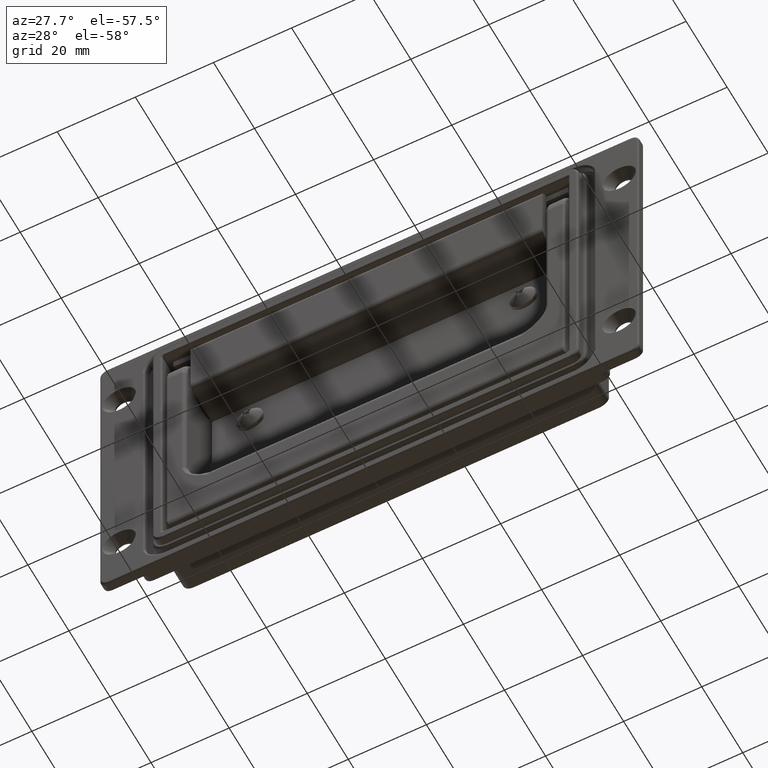
[diagram: clean part render]
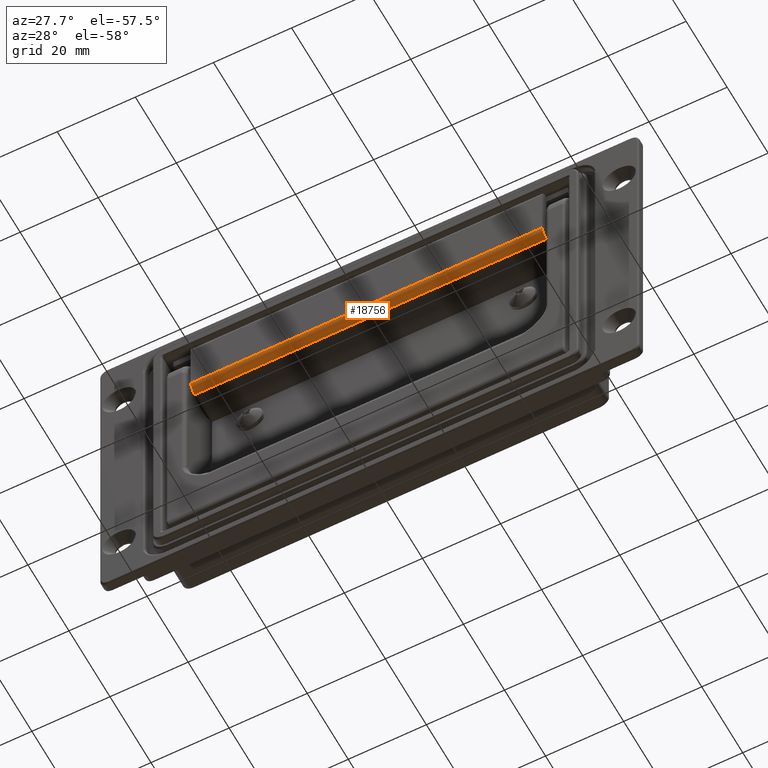
[diagram: same view with one face highlighted and labeled with its STEP entity id]
A machine part, auxiliary view. The second image highlights one B-rep face of the part: STEP entity #18756.
In plain terms, the highlighted face is a freeform B-spline surface patch.
Its self-contained STEP definition (entity closure, byte-faithful):
#18696=CARTESIAN_POINT('',(47.250000000000007,-7.299314649951114,-4.947646103384253));
#18697=CARTESIAN_POINT('',(-47.306250000000013,-7.299314649951114,-4.947646103384253));
#18698=CARTESIAN_POINT('',(47.250000000000000,-7.356984514923755,-7.149969394556928));
#18699=CARTESIAN_POINT('',(-47.306249999999991,-7.356984514923755,-7.149969394556928));
#18700=CARTESIAN_POINT('',(47.250000000000007,-5.159360034989005,-6.995048971890591));
#18701=CARTESIAN_POINT('',(-47.306249999999999,-5.159360034989005,-6.995048971890591));
#18709=(BOUNDED_SURFACE()B_SPLINE_SURFACE(1,2,((#18696,#18698,#18700),(#18697,#18699,#18701)),.UNSPECIFIED.,.F.,.F.,.U.)B_SPLINE_SURFACE_WITH_KNOTS((2,2),(3,3),(0.0,94.556250000000006),(0.0,3.542284464790266),.UNSPECIFIED.)GEOMETRIC_REPRESENTATION_ITEM()RATIONAL_B_SPLINE_SURFACE(((1.0,0.670944243861203,0.996392607650238),(1.0,0.670944243861203,0.996392607650238)))REPRESENTATION_ITEM('')SURFACE());
#18710=CARTESIAN_POINT('',(45.0,-7.300000000000000,-5.0));
#18711=VERTEX_POINT('',#18710);
#18712=CARTESIAN_POINT('',(45.0,-5.300000000000000,-7.0));
#18713=VERTEX_POINT('',#18712);
#18714=CARTESIAN_POINT('',(45.0,-7.300000000000000,-5.0));
#18715=CARTESIAN_POINT('',(45.0,-7.300000000000000,-6.999999999999999));
#18716=CARTESIAN_POINT('',(45.0,-5.300000000000000,-7.0));
#18724=(BOUNDED_CURVE()B_SPLINE_CURVE(2,(#18714,#18715,#18716),.UNSPECIFIED.,.F.,.U.)CURVE()GEOMETRIC_REPRESENTATION_ITEM()QUASI_UNIFORM_CURVE()RATIONAL_B_SPLINE_CURVE((1.0,0.707106781186548,1.0))REPRESENTATION_ITEM(''));
#18725=EDGE_CURVE('',#18711,#18713,#18724,.T.);
#18726=ORIENTED_EDGE('',*,*,#18725,.F.);
#18727=CARTESIAN_POINT('',(-45.0,-7.300000000000000,-5.0));
#18728=VERTEX_POINT('',#18727);
#18729=CARTESIAN_POINT('',(-45.0,-7.300000000000000,-5.0));
#18730=CARTESIAN_POINT('',(45.0,-7.300000000000000,-5.0));
#18731=QUASI_UNIFORM_CURVE('',1,(#18729,#18730),.UNSPECIFIED.,.F.,.U.);
#18732=EDGE_CURVE('',#18728,#18711,#18731,.T.);
#18733=ORIENTED_EDGE('',*,*,#18732,.F.);
#18734=CARTESIAN_POINT('',(-45.0,-5.300000000000000,-7.0));
#18735=VERTEX_POINT('',#18734);
#18736=CARTESIAN_POINT('',(-45.0,-5.300000000000000,-7.0));
#18737=CARTESIAN_POINT('',(-45.0,-7.300000000000000,-6.999999999999999));
#18738=CARTESIAN_POINT('',(-45.0,-7.300000000000000,-5.0));
#18746=(BOUNDED_CURVE()B_SPLINE_CURVE(2,(#18736,#18737,#18738),.UNSPECIFIED.,.F.,.U.)CURVE()GEOMETRIC_REPRESENTATION_ITEM()QUASI_UNIFORM_CURVE()RATIONAL_B_SPLINE_CURVE((1.0,0.707106781186548,1.0))REPRESENTATION_ITEM(''));
#18747=EDGE_CURVE('',#18735,#18728,#18746,.T.);
#18748=ORIENTED_EDGE('',*,*,#18747,.F.);
#18749=CARTESIAN_POINT('',(45.0,-5.300000000000000,-7.0));
#18750=CARTESIAN_POINT('',(-45.0,-5.300000000000000,-7.0));
#18751=QUASI_UNIFORM_CURVE('',1,(#18749,#18750),.UNSPECIFIED.,.F.,.U.);
#18752=EDGE_CURVE('',#18713,#18735,#18751,.T.);
#18753=ORIENTED_EDGE('',*,*,#18752,.F.);
#18754=EDGE_LOOP('',(#18726,#18733,#18748,#18753));
#18755=FACE_OUTER_BOUND('',#18754,.T.);
#18756=ADVANCED_FACE('',(#18755),#18709,.T.);